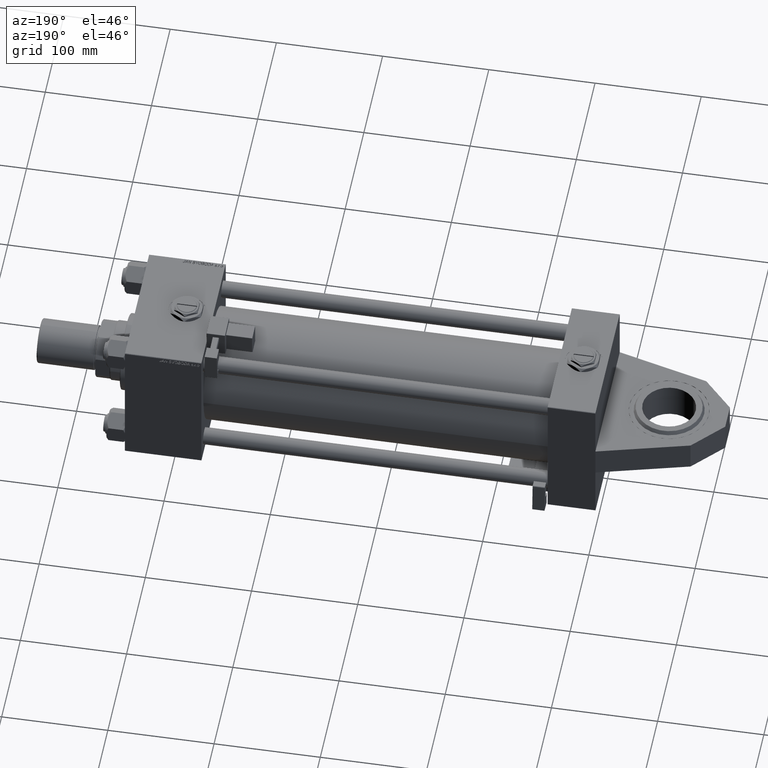
[diagram: clean part render]
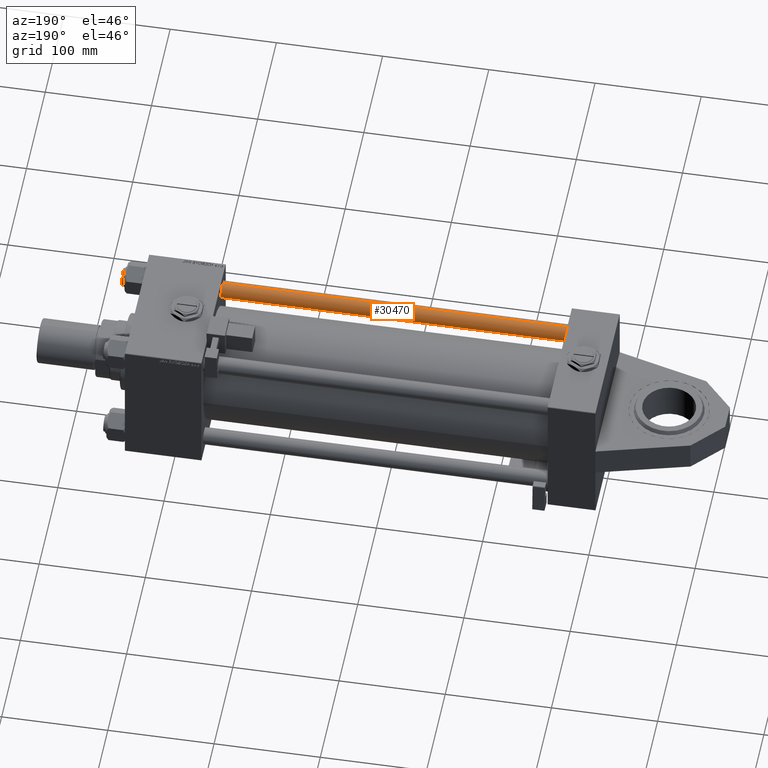
[diagram: same view with one face highlighted and labeled with its STEP entity id]
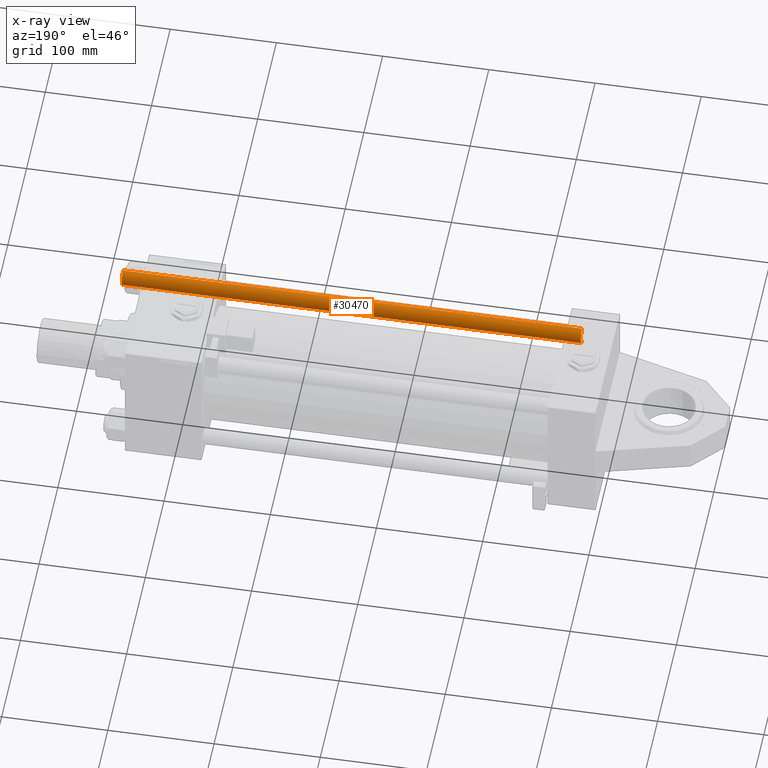
[diagram: x-ray of the same camera — body ghosted, the highlighted face saturated]
A machine part, auxiliary view. The second image highlights one B-rep face of the part: STEP entity #30470.
The next image is the same camera in x-ray: the body ghosted, the highlighted face saturated — about 0% of this face is hidden behind the body in this view.
In plain terms, the highlighted cylindrical surface (edge-blend (fillet) strip) has radius 8 mm, axis along (-1, 0, -0).
Its self-contained STEP definition (entity closure, byte-faithful):
#377 = CARTESIAN_POINT ( 'NONE',  ( -8.000000000000000000, 0.000000000000000000, 432.5000000000001705 ) ) ;
#1222 = VECTOR ( 'NONE', #26445, 1000.000000000000000 ) ;
#1723 = FACE_OUTER_BOUND ( 'NONE', #40662, .T. ) ;
#2820 = CARTESIAN_POINT ( 'NONE',  ( 0.000000000000000000, 0.000000000000000000, 432.5000000000001705 ) ) ;
#3146 = EDGE_CURVE ( 'NONE', #27661, #18485, #9650, .T. ) ;
#7034 = DIRECTION ( 'NONE',  ( -0.000000000000000000, -0.000000000000000000, -1.000000000000000000 ) ) ;
#7831 = AXIS2_PLACEMENT_3D ( 'NONE', #2820, #32477, #53782 ) ;
#9650 = LINE ( 'NONE', #18596, #1222 ) ;
#9671 = DIRECTION ( 'NONE',  ( 1.000000000000000000, 0.000000000000000000, 0.000000000000000000 ) ) ;
#10430 = ORIENTED_EDGE ( 'NONE', *, *, #30415, .T. ) ;
#10744 = EDGE_CURVE ( 'NONE', #27661, #32568, #53423, .T. ) ;
#12205 = AXIS2_PLACEMENT_3D ( 'NONE', #18809, #53234, #44800 ) ;
#17261 = AXIS2_PLACEMENT_3D ( 'NONE', #42698, #30375, #9671 ) ;
#18485 = VERTEX_POINT ( 'NONE', #41920 ) ;
#18596 = CARTESIAN_POINT ( 'NONE',  ( 8.000000000000000000, 9.797174393178823685E-16, 433.0000000000000000 ) ) ;
#18809 = CARTESIAN_POINT ( 'NONE',  ( 0.000000000000000000, 0.000000000000000000, 433.0000000000000000 ) ) ;
#26445 = DIRECTION ( 'NONE',  ( -0.000000000000000000, -0.000000000000000000, -1.000000000000000000 ) ) ;
#27131 = CARTESIAN_POINT ( 'NONE',  ( 8.000000000000000000, 9.797174393178823685E-16, 432.5000000000001705 ) ) ;
#27661 = VERTEX_POINT ( 'NONE', #27131 ) ;
#27746 = CARTESIAN_POINT ( 'NONE',  ( -8.000000000000000000, 0.000000000000000000, 433.0000000000000000 ) ) ;
#30375 = DIRECTION ( 'NONE',  ( -0.000000000000000000, -0.000000000000000000, 1.000000000000000000 ) ) ;
#30415 = EDGE_CURVE ( 'NONE', #32568, #31125, #49580, .T. ) ;
#30470 = ADVANCED_FACE ( 'NONE', ( #1723 ), #44531, .T. ) ;
#31125 = VERTEX_POINT ( 'NONE', #39659 ) ;
#32477 = DIRECTION ( 'NONE',  ( 0.000000000000000000, 0.000000000000000000, -1.000000000000000000 ) ) ;
#32568 = VERTEX_POINT ( 'NONE', #377 ) ;
#37184 = VECTOR ( 'NONE', #7034, 1000.000000000000000 ) ;
#39571 = CIRCLE ( 'NONE', #17261, 8.000000000000000000 ) ;
#39659 = CARTESIAN_POINT ( 'NONE',  ( -8.000000000000000000, 0.000000000000000000, 0.5000000000003335110 ) ) ;
#40662 = EDGE_LOOP ( 'NONE', ( #46852, #43716, #10430, #51830 ) ) ;
#41920 = CARTESIAN_POINT ( 'NONE',  ( 8.000000000000000000, 9.797174393178823685E-16, 0.5000000000003335110 ) ) ;
#42698 = CARTESIAN_POINT ( 'NONE',  ( 0.000000000000000000, 0.000000000000000000, 0.5000000000003335110 ) ) ;
#43716 = ORIENTED_EDGE ( 'NONE', *, *, #10744, .T. ) ;
#44531 = CYLINDRICAL_SURFACE ( 'NONE', #12205, 8.000000000000000000 ) ;
#44800 = DIRECTION ( 'NONE',  ( -1.000000000000000000, 0.000000000000000000, 0.000000000000000000 ) ) ;
#46852 = ORIENTED_EDGE ( 'NONE', *, *, #3146, .F. ) ;
#49580 = LINE ( 'NONE', #27746, #37184 ) ;
#51146 = EDGE_CURVE ( 'NONE', #31125, #18485, #39571, .T. ) ;
#51830 = ORIENTED_EDGE ( 'NONE', *, *, #51146, .T. ) ;
#53234 = DIRECTION ( 'NONE',  ( -0.000000000000000000, -0.000000000000000000, -1.000000000000000000 ) ) ;
#53423 = CIRCLE ( 'NONE', #7831, 8.000000000000000000 ) ;
#53782 = DIRECTION ( 'NONE',  ( 1.000000000000000000, 0.000000000000000000, 0.000000000000000000 ) ) ;